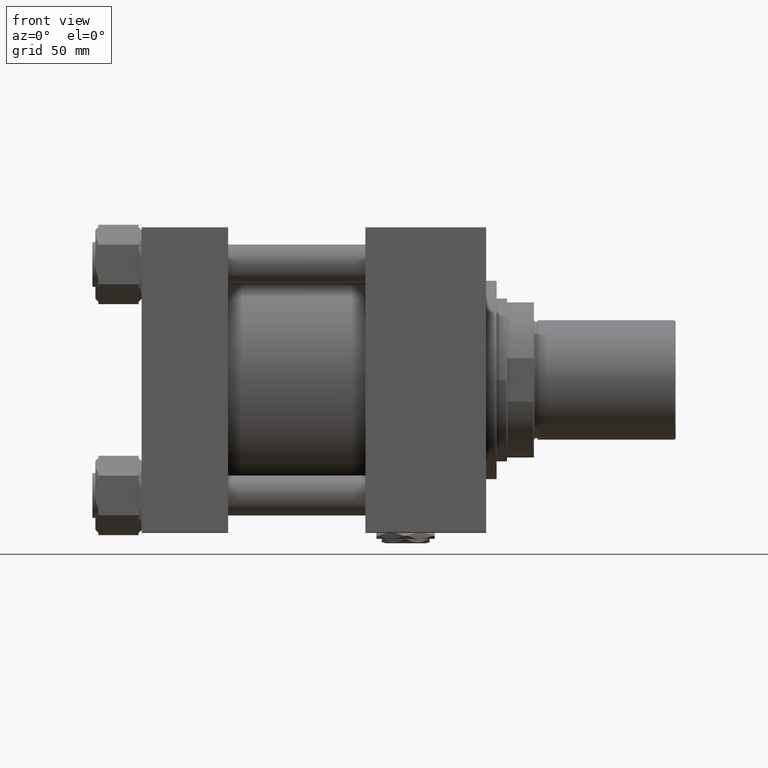
[diagram: clean part render]
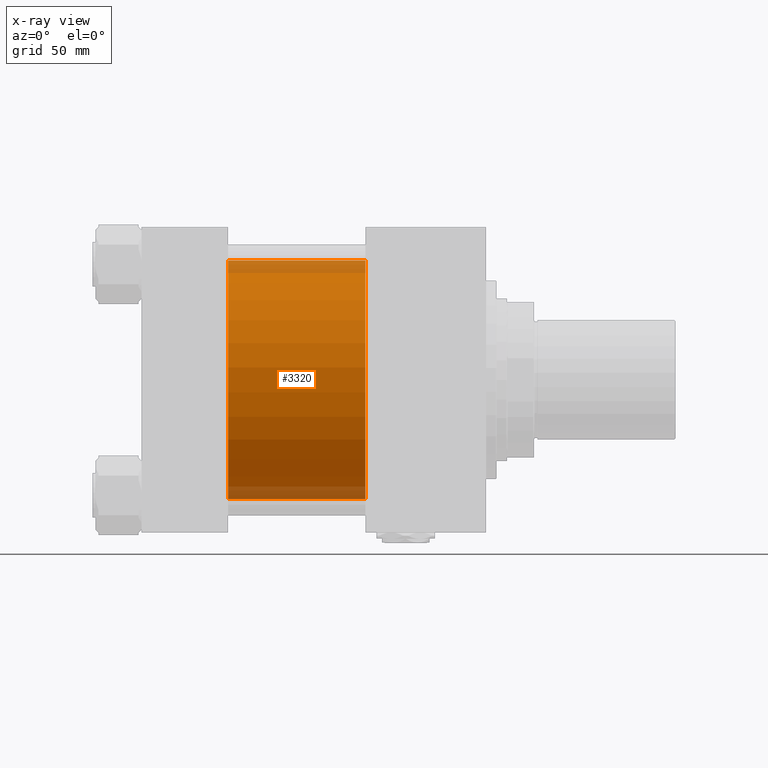
[diagram: x-ray — body ghosted, one internal face saturated and labeled with its STEP entity id]
A machine part, front view, then the same camera in x-ray: the body is ghosted and one INTERNAL B-rep face — a face not visible from any outside direction — is saturated and labeled: STEP entity #3320.
In plain terms, the highlighted cylindrical surface (partial cylindrical patch) has radius 80 mm, axis along (-1, -0, -0).
Its self-contained STEP definition (entity closure, byte-faithful):
#1030 = DIRECTION ( 'NONE',  ( 1.000000000000000000, 0.000000000000000000, 0.000000000000000000 ) ) ;
#1307 = CYLINDRICAL_SURFACE ( 'NONE', #3550, 80.00000000000000000 ) ;
#3320 = ADVANCED_FACE ( 'NONE', ( #25629 ), #1307, .F. ) ;
#3550 = AXIS2_PLACEMENT_3D ( 'NONE', #17082, #49781, #17346 ) ;
#4403 = EDGE_CURVE ( 'NONE', #31642, #50211, #21670, .T. ) ;
#8889 = ORIENTED_EDGE ( 'NONE', *, *, #43573, .T. ) ;
#10008 = ORIENTED_EDGE ( 'NONE', *, *, #32294, .T. ) ;
#14196 = DIRECTION ( 'NONE',  ( -1.000000000000000000, -0.000000000000000000, -0.000000000000000000 ) ) ;
#15503 = LINE ( 'NONE', #18722, #25612 ) ;
#15788 = CARTESIAN_POINT ( 'NONE',  ( 150.0000000000000000, -2.602085213965210642E-15, 0.000000000000000000 ) ) ;
#17082 = CARTESIAN_POINT ( 'NONE',  ( 150.0000000000000000, -2.602085213965210642E-15, 0.000000000000000000 ) ) ;
#17346 = DIRECTION ( 'NONE',  ( 0.000000000000000000, 0.000000000000000000, 1.000000000000000000 ) ) ;
#18722 = CARTESIAN_POINT ( 'NONE',  ( 150.0000000000000000, 7.195089179213615410E-15, -80.00000000000000000 ) ) ;
#19506 = DIRECTION ( 'NONE',  ( 0.000000000000000000, 0.000000000000000000, -1.000000000000000000 ) ) ;
#21670 = LINE ( 'NONE', #39110, #30948 ) ;
#22565 = EDGE_LOOP ( 'NONE', ( #10008, #8889, #50741, #35438 ) ) ;
#25612 = VECTOR ( 'NONE', #51434, 1000.000000000000000 ) ;
#25629 = FACE_OUTER_BOUND ( 'NONE', #22565, .T. ) ;
#25890 = EDGE_CURVE ( 'NONE', #50211, #42798, #52635, .T. ) ;
#28005 = AXIS2_PLACEMENT_3D ( 'NONE', #15788, #32385, #19506 ) ;
#28237 = CARTESIAN_POINT ( 'NONE',  ( 58.00000000000000000, -2.602085213965210642E-15, 80.00000000000000000 ) ) ;
#29818 = CARTESIAN_POINT ( 'NONE',  ( 150.0000000000000000, -2.602085213965210642E-15, 80.00000000000000000 ) ) ;
#30948 = VECTOR ( 'NONE', #14196, 1000.000000000000000 ) ;
#31254 = CARTESIAN_POINT ( 'NONE',  ( 58.00000000000000000, 7.195089179213615410E-15, -80.00000000000000000 ) ) ;
#31642 = VERTEX_POINT ( 'NONE', #29818 ) ;
#32294 = EDGE_CURVE ( 'NONE', #31642, #50277, #50303, .T. ) ;
#32385 = DIRECTION ( 'NONE',  ( 1.000000000000000000, 0.000000000000000000, 0.000000000000000000 ) ) ;
#32922 = AXIS2_PLACEMENT_3D ( 'NONE', #37187, #1030, #50053 ) ;
#35438 = ORIENTED_EDGE ( 'NONE', *, *, #4403, .F. ) ;
#37187 = CARTESIAN_POINT ( 'NONE',  ( 58.00000000000000000, -2.602085213965210642E-15, 0.000000000000000000 ) ) ;
#39110 = CARTESIAN_POINT ( 'NONE',  ( 150.0000000000000000, -2.602085213965210642E-15, 80.00000000000000000 ) ) ;
#42798 = VERTEX_POINT ( 'NONE', #31254 ) ;
#43573 = EDGE_CURVE ( 'NONE', #50277, #42798, #15503, .T. ) ;
#45589 = CARTESIAN_POINT ( 'NONE',  ( 150.0000000000000000, 7.195089179213615410E-15, -80.00000000000000000 ) ) ;
#49781 = DIRECTION ( 'NONE',  ( -1.000000000000000000, -0.000000000000000000, -0.000000000000000000 ) ) ;
#50053 = DIRECTION ( 'NONE',  ( 0.000000000000000000, 0.000000000000000000, -1.000000000000000000 ) ) ;
#50211 = VERTEX_POINT ( 'NONE', #28237 ) ;
#50277 = VERTEX_POINT ( 'NONE', #45589 ) ;
#50303 = CIRCLE ( 'NONE', #28005, 80.00000000000000000 ) ;
#50741 = ORIENTED_EDGE ( 'NONE', *, *, #25890, .F. ) ;
#51434 = DIRECTION ( 'NONE',  ( -1.000000000000000000, -0.000000000000000000, -0.000000000000000000 ) ) ;
#52635 = CIRCLE ( 'NONE', #32922, 80.00000000000000000 ) ;